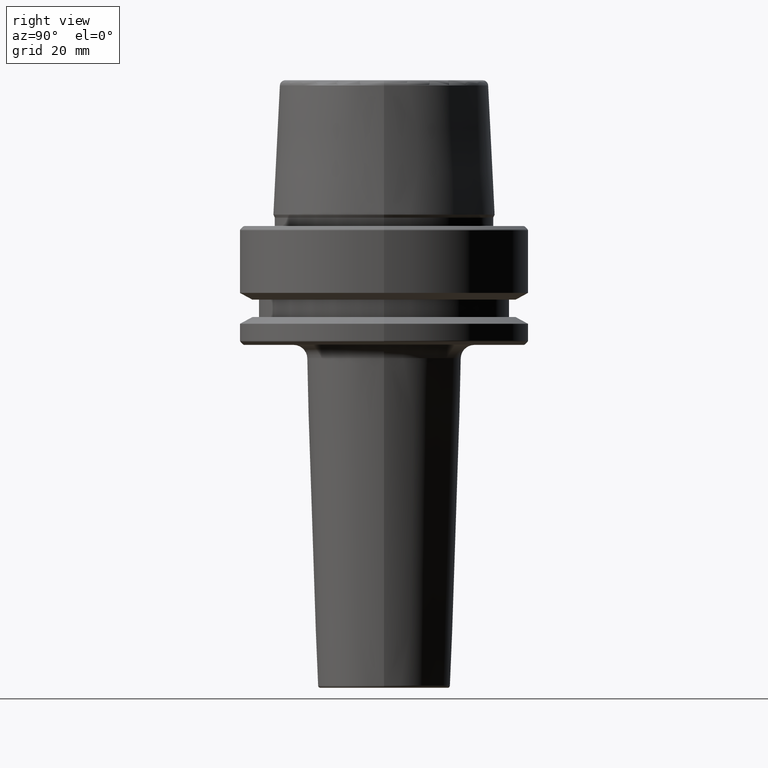
[diagram: clean part render]
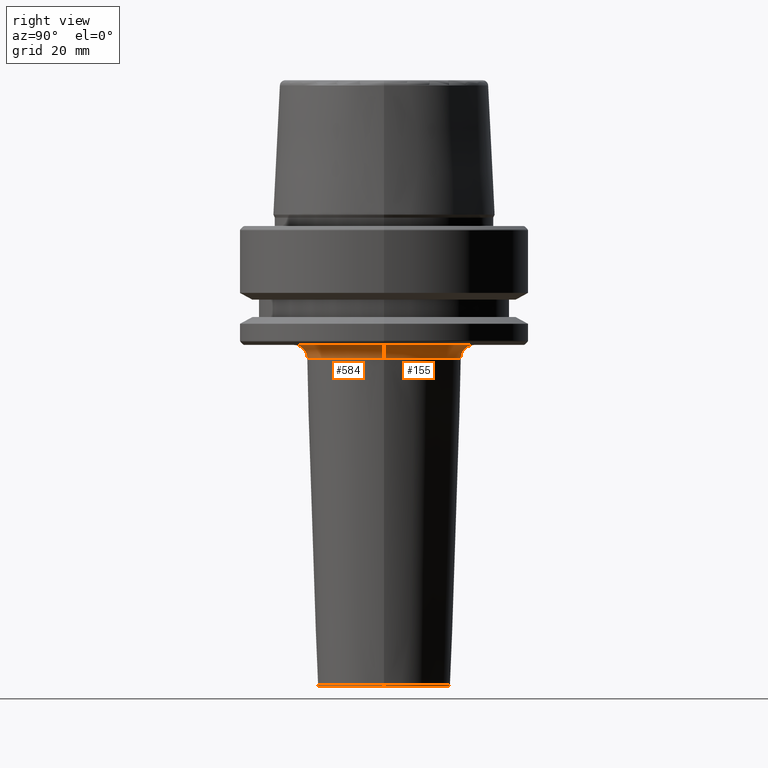
[diagram: same view with one multi-face feature highlighted, each face labeled with its STEP entity id]
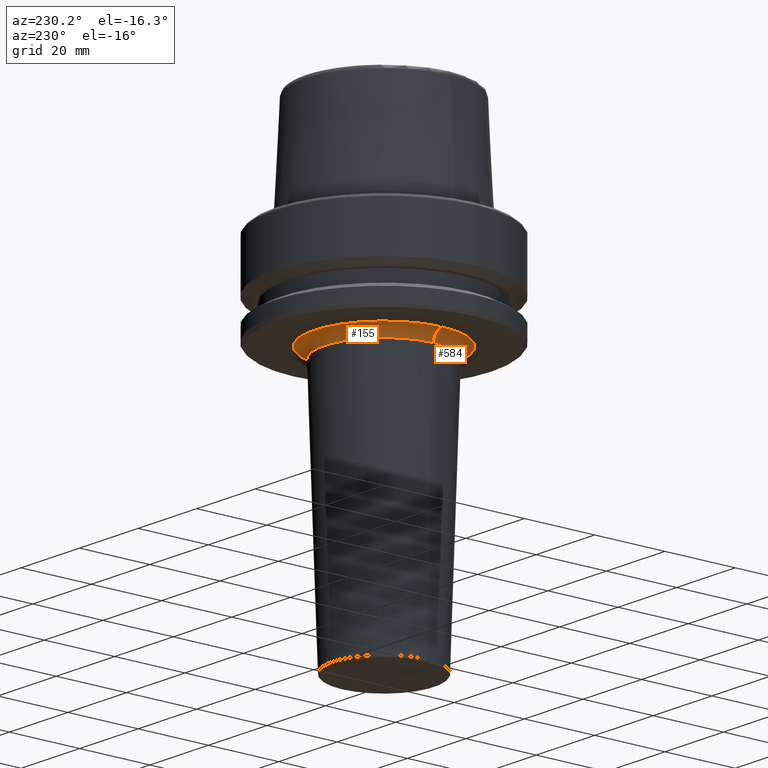
[diagram: same view with one multi-face feature highlighted, each face labeled with its STEP entity id]
A machine part, right view. The highlighted faces form ONE feature: a constant-radius fillet chain: 2 tangent blend faces with common blend radius 3 mm. The faces share edges in the B-rep.
A second angle (auxiliary view) of the same feature is appended — it is thin or edge-on in the first view.
Their STEP definitions:
[1] entity #584 (Torus):
#13 = AXIS2_PLACEMENT_3D ( 'NONE', #667, #872, #1242 ) ;
#16 = CARTESIAN_POINT ( 'NONE',  ( 0.0000000000000000000, 0.0000000000000000000, -26.00000000000001100 ) ) ;
#17 = AXIS2_PLACEMENT_3D ( 'NONE', #666, #268, #871 ) ;
#39 = DIRECTION ( 'NONE',  ( 0.0000000000000000000, 0.0000000000000000000, -1.000000000000000000 ) ) ;
#49 = DIRECTION ( 'NONE',  ( 1.224646799147353200E-016, 1.000000000000000000, 0.0000000000000000000 ) ) ;
#88 = VERTEX_POINT ( 'NONE', #931 ) ;
#90 = VERTEX_POINT ( 'NONE', #417 ) ;
#95 = CIRCLE ( 'NONE', #977, 2.999999999999999100 ) ;
#231 = ORIENTED_EDGE ( 'NONE', *, *, #410, .F. ) ;
#235 = EDGE_CURVE ( 'NONE', #90, #1080, #482, .T. ) ;
#246 = DIRECTION ( 'NONE',  ( -1.000000000000000000, 1.224646799147353500E-016, 0.0000000000000000000 ) ) ;
#261 = FACE_OUTER_BOUND ( 'NONE', #1146, .T. ) ;
#268 = DIRECTION ( 'NONE',  ( -0.0000000000000000000, -0.0000000000000000000, -1.000000000000000000 ) ) ;
#382 = ORIENTED_EDGE ( 'NONE', *, *, #235, .T. ) ;
#410 = EDGE_CURVE ( 'NONE', #88, #983, #95, .T. ) ;
#417 = CARTESIAN_POINT ( 'NONE',  ( -19.90166620396072300, 2.437251181437955100E-015, -26.00000000000001100 ) ) ;
#442 = ORIENTED_EDGE ( 'NONE', *, *, #1122, .F. ) ;
#473 = AXIS2_PLACEMENT_3D ( 'NONE', #636, #49, #246 ) ;
#481 = AXIS2_PLACEMENT_3D ( 'NONE', #16, #782, #994 ) ;
#482 = CIRCLE ( 'NONE', #473, 2.999999999999999100 ) ;
#529 = CARTESIAN_POINT ( 'NONE',  ( 19.90166620396072300, 0.0000000000000000000, -29.00000000000000700 ) ) ;
#584 = ADVANCED_FACE ( 'NONE', ( #261 ), #1251, .F. ) ;
#636 = CARTESIAN_POINT ( 'NONE',  ( -19.90166620396072300, 2.437251181437955100E-015, -29.00000000000000700 ) ) ;
#666 = CARTESIAN_POINT ( 'NONE',  ( 0.0000000000000000000, 0.0000000000000000000, -28.90005550930209200 ) ) ;
#667 = CARTESIAN_POINT ( 'NONE',  ( 0.0000000000000000000, 0.0000000000000000000, -29.00000000000000700 ) ) ;
#702 = CARTESIAN_POINT ( 'NONE',  ( 16.90333148302325800, 0.0000000000000000000, -28.90005550930209200 ) ) ;
#782 = DIRECTION ( 'NONE',  ( -0.0000000000000000000, -0.0000000000000000000, 1.000000000000000000 ) ) ;
#803 = CIRCLE ( 'NONE', #481, 19.90166620396072300 ) ;
#865 = CARTESIAN_POINT ( 'NONE',  ( -16.90333148302325800, 2.070061079561111500E-015, -28.90005550930209200 ) ) ;
#871 = DIRECTION ( 'NONE',  ( 1.000000000000000000, 0.0000000000000000000, 0.0000000000000000000 ) ) ;
#872 = DIRECTION ( 'NONE',  ( -0.0000000000000000000, -0.0000000000000000000, 1.000000000000000000 ) ) ;
#924 = ORIENTED_EDGE ( 'NONE', *, *, #1223, .F. ) ;
#931 = CARTESIAN_POINT ( 'NONE',  ( 19.90166620396072300, 0.0000000000000000000, -26.00000000000001100 ) ) ;
#977 = AXIS2_PLACEMENT_3D ( 'NONE', #529, #1102, #39 ) ;
#983 = VERTEX_POINT ( 'NONE', #702 ) ;
#994 = DIRECTION ( 'NONE',  ( 1.000000000000000000, 0.0000000000000000000, 0.0000000000000000000 ) ) ;
#1080 = VERTEX_POINT ( 'NONE', #865 ) ;
#1102 = DIRECTION ( 'NONE',  ( 0.0000000000000000000, -1.000000000000000000, 0.0000000000000000000 ) ) ;
#1122 = EDGE_CURVE ( 'NONE', #983, #1080, #1212, .T. ) ;
#1146 = EDGE_LOOP ( 'NONE', ( #924, #382, #442, #231 ) ) ;
#1212 = CIRCLE ( 'NONE', #17, 16.90333148302325800 ) ;
#1223 = EDGE_CURVE ( 'NONE', #90, #88, #803, .T. ) ;
#1242 = DIRECTION ( 'NONE',  ( 1.000000000000000000, 0.0000000000000000000, 0.0000000000000000000 ) ) ;
#1251 = TOROIDAL_SURFACE ( 'NONE', #13, 19.90166620396072300, 3.000000000000000000 ) ;
[2] entity #155 (Torus):
#4 = DIRECTION ( 'NONE',  ( 1.000000000000000000, 0.0000000000000000000, 0.0000000000000000000 ) ) ;
#39 = DIRECTION ( 'NONE',  ( 0.0000000000000000000, 0.0000000000000000000, -1.000000000000000000 ) ) ;
#49 = DIRECTION ( 'NONE',  ( 1.224646799147353200E-016, 1.000000000000000000, 0.0000000000000000000 ) ) ;
#88 = VERTEX_POINT ( 'NONE', #931 ) ;
#90 = VERTEX_POINT ( 'NONE', #417 ) ;
#95 = CIRCLE ( 'NONE', #977, 2.999999999999999100 ) ;
#148 = CARTESIAN_POINT ( 'NONE',  ( 0.0000000000000000000, 0.0000000000000000000, -26.00000000000001100 ) ) ;
#155 = ADVANCED_FACE ( 'NONE', ( #526 ), #883, .F. ) ;
#211 = DIRECTION ( 'NONE',  ( -0.0000000000000000000, -0.0000000000000000000, -1.000000000000000000 ) ) ;
#235 = EDGE_CURVE ( 'NONE', #90, #1080, #482, .T. ) ;
#246 = DIRECTION ( 'NONE',  ( -1.000000000000000000, 1.224646799147353500E-016, 0.0000000000000000000 ) ) ;
#304 = CARTESIAN_POINT ( 'NONE',  ( 0.0000000000000000000, 0.0000000000000000000, -28.90005550930209200 ) ) ;
#362 = ORIENTED_EDGE ( 'NONE', *, *, #410, .T. ) ;
#363 = DIRECTION ( 'NONE',  ( -0.0000000000000000000, -0.0000000000000000000, 1.000000000000000000 ) ) ;
#373 = AXIS2_PLACEMENT_3D ( 'NONE', #304, #211, #4 ) ;
#410 = EDGE_CURVE ( 'NONE', #88, #983, #95, .T. ) ;
#417 = CARTESIAN_POINT ( 'NONE',  ( -19.90166620396072300, 2.437251181437955100E-015, -26.00000000000001100 ) ) ;
#473 = AXIS2_PLACEMENT_3D ( 'NONE', #636, #49, #246 ) ;
#480 = ORIENTED_EDGE ( 'NONE', *, *, #916, .F. ) ;
#482 = CIRCLE ( 'NONE', #473, 2.999999999999999100 ) ;
#487 = EDGE_CURVE ( 'NONE', #88, #90, #868, .T. ) ;
#526 = FACE_OUTER_BOUND ( 'NONE', #686, .T. ) ;
#529 = CARTESIAN_POINT ( 'NONE',  ( 19.90166620396072300, 0.0000000000000000000, -29.00000000000000700 ) ) ;
#636 = CARTESIAN_POINT ( 'NONE',  ( -19.90166620396072300, 2.437251181437955100E-015, -29.00000000000000700 ) ) ;
#686 = EDGE_LOOP ( 'NONE', ( #1022, #733, #362, #480 ) ) ;
#702 = CARTESIAN_POINT ( 'NONE',  ( 16.90333148302325800, 0.0000000000000000000, -28.90005550930209200 ) ) ;
#711 = CARTESIAN_POINT ( 'NONE',  ( 0.0000000000000000000, 0.0000000000000000000, -29.00000000000000700 ) ) ;
#733 = ORIENTED_EDGE ( 'NONE', *, *, #487, .F. ) ;
#748 = DIRECTION ( 'NONE',  ( 1.000000000000000000, 0.0000000000000000000, 0.0000000000000000000 ) ) ;
#865 = CARTESIAN_POINT ( 'NONE',  ( -16.90333148302325800, 2.070061079561111500E-015, -28.90005550930209200 ) ) ;
#868 = CIRCLE ( 'NONE', #904, 19.90166620396072300 ) ;
#883 = TOROIDAL_SURFACE ( 'NONE', #895, 19.90166620396072300, 3.000000000000000000 ) ;
#895 = AXIS2_PLACEMENT_3D ( 'NONE', #711, #915, #1185 ) ;
#904 = AXIS2_PLACEMENT_3D ( 'NONE', #148, #363, #748 ) ;
#915 = DIRECTION ( 'NONE',  ( -0.0000000000000000000, -0.0000000000000000000, 1.000000000000000000 ) ) ;
#916 = EDGE_CURVE ( 'NONE', #1080, #983, #1199, .T. ) ;
#931 = CARTESIAN_POINT ( 'NONE',  ( 19.90166620396072300, 0.0000000000000000000, -26.00000000000001100 ) ) ;
#977 = AXIS2_PLACEMENT_3D ( 'NONE', #529, #1102, #39 ) ;
#983 = VERTEX_POINT ( 'NONE', #702 ) ;
#1022 = ORIENTED_EDGE ( 'NONE', *, *, #235, .F. ) ;
#1080 = VERTEX_POINT ( 'NONE', #865 ) ;
#1102 = DIRECTION ( 'NONE',  ( 0.0000000000000000000, -1.000000000000000000, 0.0000000000000000000 ) ) ;
#1185 = DIRECTION ( 'NONE',  ( 1.000000000000000000, 0.0000000000000000000, 0.0000000000000000000 ) ) ;
#1199 = CIRCLE ( 'NONE', #373, 16.90333148302325800 ) ;